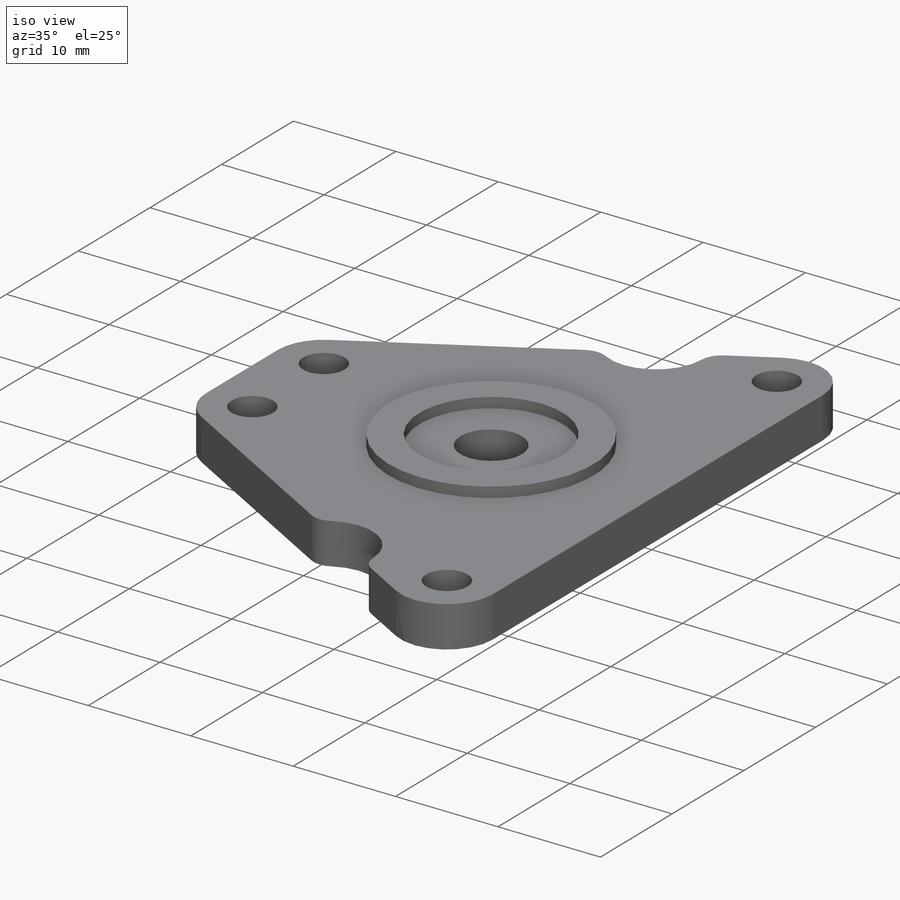
[diagram: iso view]
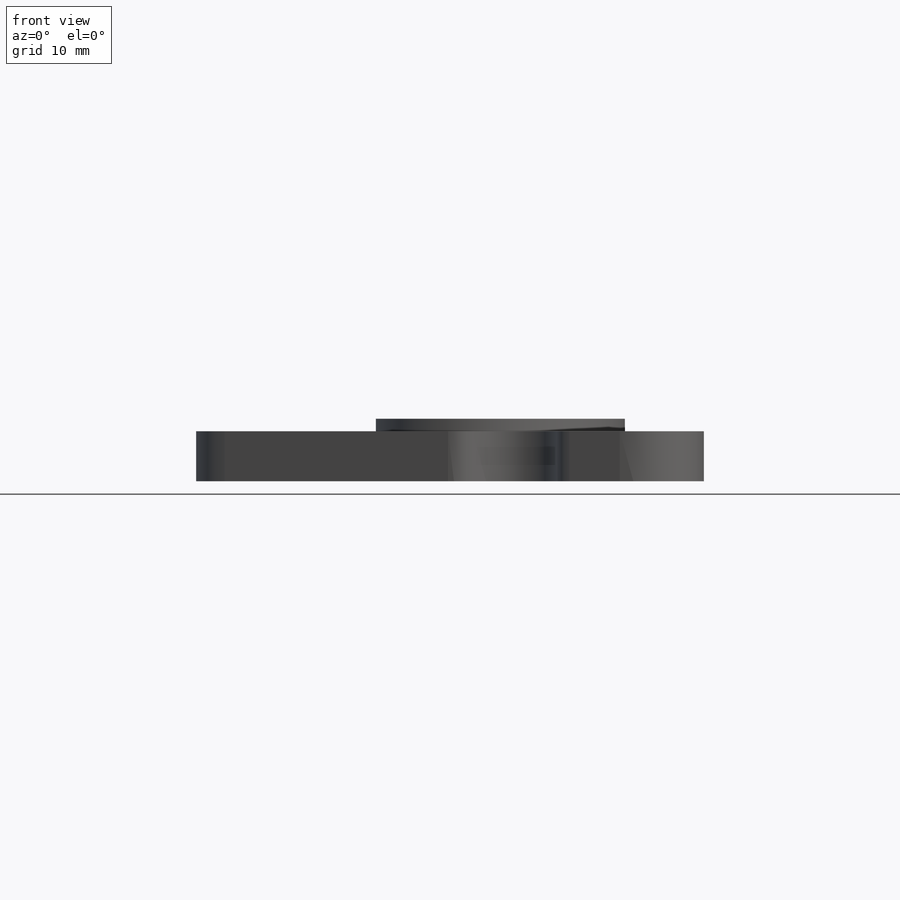
[diagram: front view]
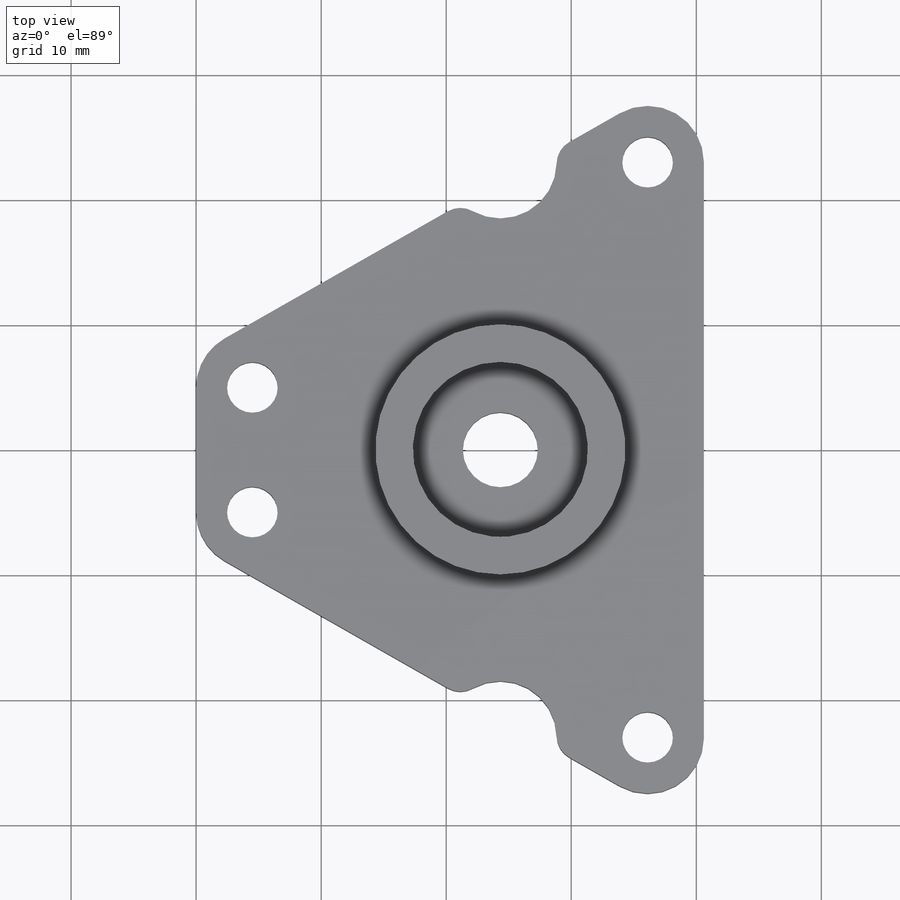
[diagram: top view]
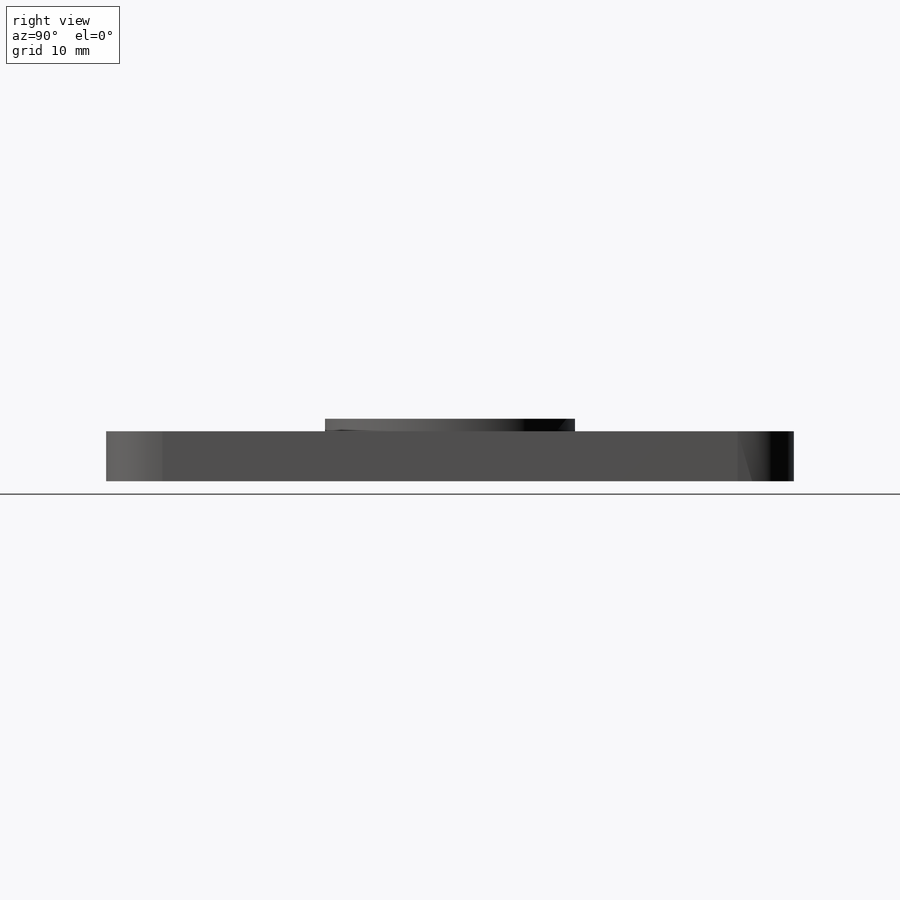
[diagram: right view]
SOLIDWORKS PART (.sldprt)
format: sldprt  version: not decoded by parser v0  size: 195,072 bytes
history: native  units: mm
features: sketch x2, extrude x2, material x1, fillet x1 (+11 scaffold rows collapsed)
feature tree (17):
  scaffold x11  (default folders/planes/origin — collapsed)
  material  "Material <not specified>"
  sketch  "Sketch1"  dims[c1.D5=4.05mm c1.D6=4.05mm c1.D11=6.0mm c1.D13=9.0mm c1.D14=9.0mm c2.D13=4.5mm c2.D14=4.5mm c2.D9=4.5mm c2.D3=4.5mm c2.D5=4.05mm c2.D6=6.0mm c2.D1=5.065mm c2.D2=5.065mm c3.D3=31.56mm c3.D4=18.4mm c3.D6=4.2mm c3.D7=4.2mm c3.D8=4.2mm c3.D9=4.2mm c3.D10=11.68mm c3.D12=11.68mm c4.D7=4.2mm c4.D15=~46.570843mm c4.D12=20.28mm c4.D2=9.97mm c4.D3=~61.550708mm c4.D4=24.9512mm c4.D5=~12.805939mm c4.D6=~46.930002mm c5.D7=~39.960063mm c5.D8=~4.200045mm c5.D9=24.9512mm c6.D9=~120.242865deg c7.D9=~14.956032mm c8.D9=~120.242836deg c8.D3=~14.956032mm c9.D3=120.0deg c9.D6=~14.956032mm c10.D6=120.0deg c10.D7=40.61mm c10.D3=46.0mm c10.D1=4.5mm c10.D4=11.78mm]
  extrude  "Boss-Extrude1"  Depth=4mm
  sketch  "Sketch2"  dims[c1.D1=14.0mm c1.D2=20.0mm c2.D1=14.0mm c2.D2=20.0mm c3.D1=14.0mm c3.D2=20.0mm]
  extrude  "Boss-Extrude2"  Depth=1mm
  fillet  "Fillet1"  Radius=2mm
decode coverage: 5 of 5 modeling features carry decoded parameters
note: ~ marks probable driven/reference dimensions
note: suppression state not decoded; provenance and decode notes live in map.json
